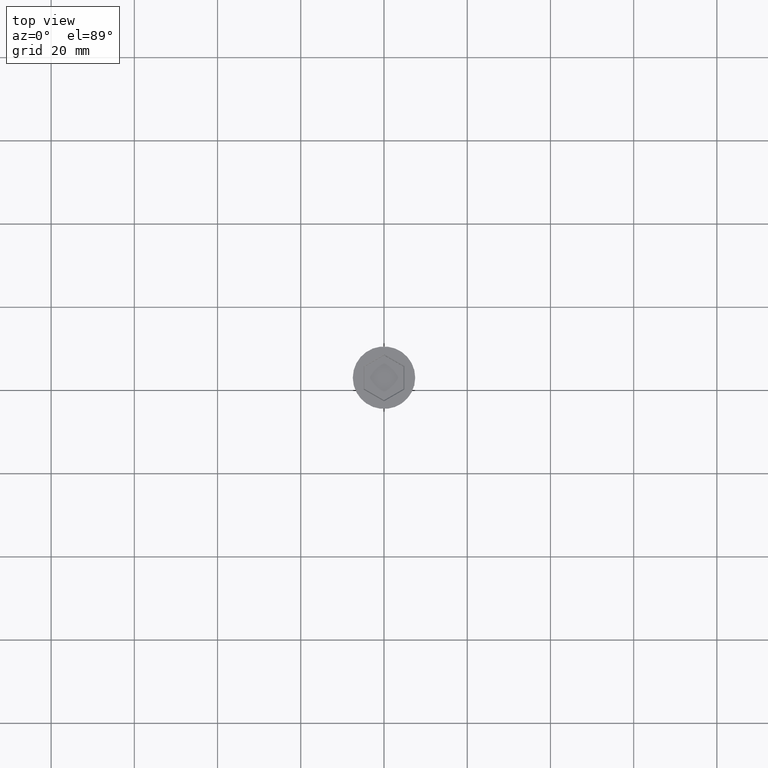
[diagram: clean part render]
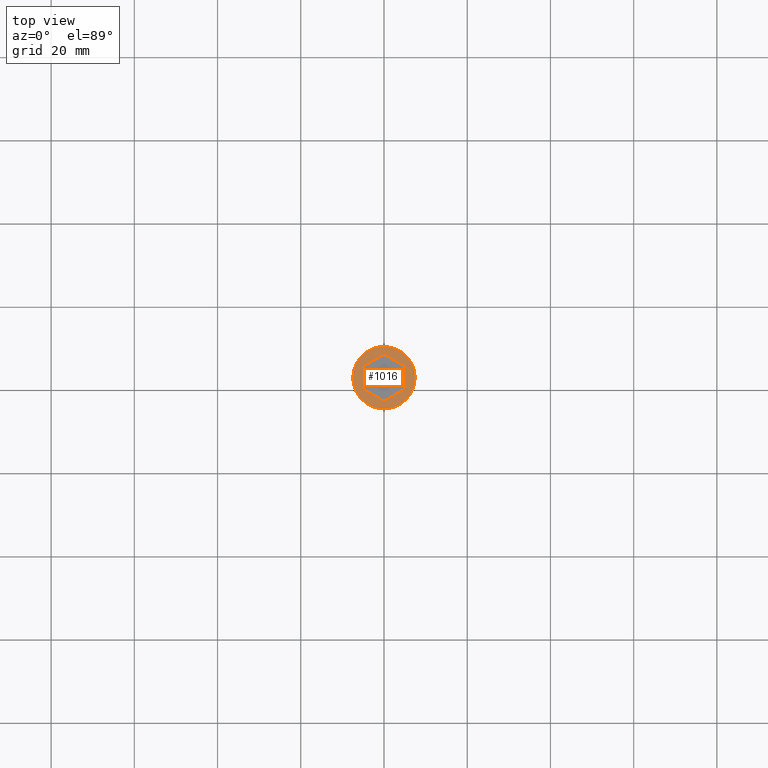
[diagram: same view with one face highlighted and labeled with its STEP entity id]
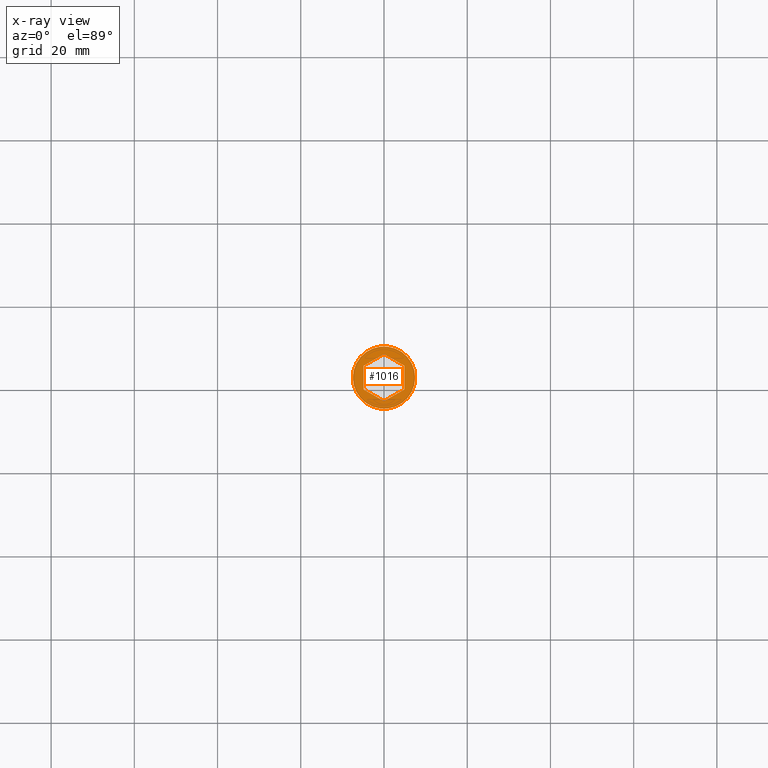
[diagram: x-ray of the same camera — body ghosted, the highlighted face saturated]
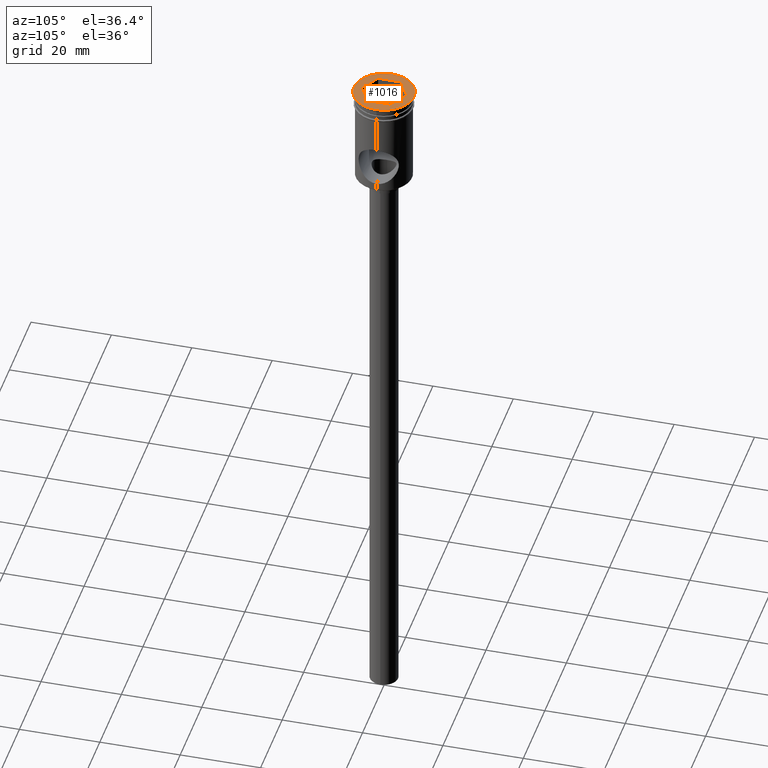
[diagram: same view with one face highlighted and labeled with its STEP entity id]
A machine part, top view. The second image highlights one B-rep face of the part: STEP entity #1016.
The next image is the same camera in x-ray: the body ghosted, the highlighted face saturated — about 0% of this face is hidden behind the body in this view.
A second angle (auxiliary view) of the same face is appended — the face is thin or edge-on in the first view.
In plain terms, the highlighted planar face has unit normal (0, -0, 1).
Its self-contained STEP definition (entity closure, byte-faithful):
#27 = VECTOR ( 'NONE', #640, 1000.000000000000000 ) ;
#35 = EDGE_LOOP ( 'NONE', ( #95, #617 ) ) ;
#39 = LINE ( 'NONE', #477, #700 ) ;
#45 = VECTOR ( 'NONE', #340, 1000.000000000000000 ) ;
#95 = ORIENTED_EDGE ( 'NONE', *, *, #625, .T. ) ;
#100 = DIRECTION ( 'NONE',  ( -1.598207019933148115E-16, -1.000000000000000000, 0.000000000000000000 ) ) ;
#104 = LINE ( 'NONE', #320, #45 ) ;
#154 = CARTESIAN_POINT ( 'NONE',  ( 0.09999999999999630018, -5.600297611139365195, 0.000000000000000000 ) ) ;
#159 = CARTESIAN_POINT ( 'NONE',  ( -4.899999999999994138, 2.829016319029163729, 0.000000000000000000 ) ) ;
#163 = PLANE ( 'NONE',  #1150 ) ;
#192 = EDGE_CURVE ( 'NONE', #485, #636, #104, .T. ) ;
#209 = CARTESIAN_POINT ( 'NONE',  ( 4.899999999999994138, -2.829016319029163729, 0.000000000000000000 ) ) ;
#248 = AXIS2_PLACEMENT_3D ( 'NONE', #575, #1458, #689 ) ;
#320 = CARTESIAN_POINT ( 'NONE',  ( -0.09999999999999770184, 5.600297611139364307, 0.000000000000000000 ) ) ;
#340 = DIRECTION ( 'NONE',  ( 0.8660254037844387076, 0.4999999999999998890, 0.000000000000000000 ) ) ;
#349 = ORIENTED_EDGE ( 'NONE', *, *, #392, .T. ) ;
#362 = CARTESIAN_POINT ( 'NONE',  ( -4.899999999999994138, 2.713546265191240536, 0.000000000000000000 ) ) ;
#392 = EDGE_CURVE ( 'NONE', #636, #457, #39, .T. ) ;
#418 = CARTESIAN_POINT ( 'NONE',  ( -7.915723921244255173E-16, 5.658032638058325681, 0.000000000000000000 ) ) ;
#457 = VERTEX_POINT ( 'NONE', #605 ) ;
#477 = CARTESIAN_POINT ( 'NONE',  ( 4.799999999999996270, 2.886751345948122882, 0.000000000000000000 ) ) ;
#485 = VERTEX_POINT ( 'NONE', #159 ) ;
#515 = CARTESIAN_POINT ( 'NONE',  ( 0.000000000000000000, 0.000000000000000000, 0.000000000000000000 ) ) ;
#545 = AXIS2_PLACEMENT_3D ( 'NONE', #974, #1086, #979 ) ;
#575 = CARTESIAN_POINT ( 'NONE',  ( 0.000000000000000000, 0.000000000000000000, 0.000000000000000000 ) ) ;
#590 = ORIENTED_EDGE ( 'NONE', *, *, #978, .T. ) ;
#605 = CARTESIAN_POINT ( 'NONE',  ( 4.899999999999995026, 2.829016319029161508, 0.000000000000000000 ) ) ;
#608 = ORIENTED_EDGE ( 'NONE', *, *, #1134, .T. ) ;
#617 = ORIENTED_EDGE ( 'NONE', *, *, #1047, .T. ) ;
#625 = EDGE_CURVE ( 'NONE', #1294, #1132, #725, .T. ) ;
#636 = VERTEX_POINT ( 'NONE', #418 ) ;
#640 = DIRECTION ( 'NONE',  ( -0.8660254037844387076, -0.4999999999999998890, 0.000000000000000000 ) ) ;
#683 = EDGE_CURVE ( 'NONE', #1093, #485, #951, .T. ) ;
#689 = DIRECTION ( 'NONE',  ( 1.000000000000000000, 0.000000000000000000, 0.000000000000000000 ) ) ;
#700 = VECTOR ( 'NONE', #1074, 1000.000000000000114 ) ;
#702 = VECTOR ( 'NONE', #1383, 999.9999999999998863 ) ;
#716 = ORIENTED_EDGE ( 'NONE', *, *, #192, .T. ) ;
#725 = CIRCLE ( 'NONE', #248, 7.500000000000000000 ) ;
#735 = CARTESIAN_POINT ( 'NONE',  ( 7.500000000000000000, 0.000000000000000000, 0.000000000000000000 ) ) ;
#748 = DIRECTION ( 'NONE',  ( 0.000000000000000000, -0.000000000000000000, 1.000000000000000000 ) ) ;
#755 = VECTOR ( 'NONE', #100, 1000.000000000000000 ) ;
#819 = LINE ( 'NONE', #1474, #755 ) ;
#852 = FACE_OUTER_BOUND ( 'NONE', #35, .T. ) ;
#925 = CARTESIAN_POINT ( 'NONE',  ( -4.799999999999996270, -2.886751345948123770, 0.000000000000000000 ) ) ;
#946 = ORIENTED_EDGE ( 'NONE', *, *, #683, .T. ) ;
#951 = LINE ( 'NONE', #362, #982 ) ;
#968 = LINE ( 'NONE', #154, #27 ) ;
#974 = CARTESIAN_POINT ( 'NONE',  ( 0.000000000000000000, 0.000000000000000000, 0.000000000000000000 ) ) ;
#978 = EDGE_CURVE ( 'NONE', #1203, #1356, #968, .T. ) ;
#979 = DIRECTION ( 'NONE',  ( 1.000000000000000000, 0.000000000000000000, 0.000000000000000000 ) ) ;
#982 = VECTOR ( 'NONE', #1172, 1000.000000000000000 ) ;
#1000 = CARTESIAN_POINT ( 'NONE',  ( -3.203600579260160317E-16, -5.658032638058326569, 0.000000000000000000 ) ) ;
#1016 = ADVANCED_FACE ( 'NONE', ( #1451, #852 ), #163, .T. ) ;
#1040 = CARTESIAN_POINT ( 'NONE',  ( -7.500000000000000000, 9.184850993605147944E-16, 0.000000000000000000 ) ) ;
#1047 = EDGE_CURVE ( 'NONE', #1132, #1294, #1180, .T. ) ;
#1074 = DIRECTION ( 'NONE',  ( 0.8660254037844385966, -0.5000000000000001110, 0.000000000000000000 ) ) ;
#1086 = DIRECTION ( 'NONE',  ( -0.000000000000000000, -0.000000000000000000, 1.000000000000000000 ) ) ;
#1093 = VERTEX_POINT ( 'NONE', #1190 ) ;
#1105 = EDGE_CURVE ( 'NONE', #1356, #1093, #1199, .T. ) ;
#1108 = ORIENTED_EDGE ( 'NONE', *, *, #1105, .T. ) ;
#1132 = VERTEX_POINT ( 'NONE', #1040 ) ;
#1134 = EDGE_CURVE ( 'NONE', #457, #1203, #819, .T. ) ;
#1150 = AXIS2_PLACEMENT_3D ( 'NONE', #515, #748, #1445 ) ;
#1172 = DIRECTION ( 'NONE',  ( 0.000000000000000000, 1.000000000000000000, 0.000000000000000000 ) ) ;
#1180 = CIRCLE ( 'NONE', #545, 7.500000000000000000 ) ;
#1190 = CARTESIAN_POINT ( 'NONE',  ( -4.899999999999994138, -2.829016319029162840, 0.000000000000000000 ) ) ;
#1199 = LINE ( 'NONE', #925, #702 ) ;
#1203 = VERTEX_POINT ( 'NONE', #209 ) ;
#1294 = VERTEX_POINT ( 'NONE', #735 ) ;
#1356 = VERTEX_POINT ( 'NONE', #1000 ) ;
#1383 = DIRECTION ( 'NONE',  ( -0.8660254037844385966, 0.5000000000000002220, 0.000000000000000000 ) ) ;
#1432 = EDGE_LOOP ( 'NONE', ( #1108, #946, #716, #349, #608, #590 ) ) ;
#1445 = DIRECTION ( 'NONE',  ( 1.000000000000000000, 0.000000000000000000, 0.000000000000000000 ) ) ;
#1451 = FACE_BOUND ( 'NONE', #1432, .T. ) ;
#1458 = DIRECTION ( 'NONE',  ( -0.000000000000000000, -0.000000000000000000, 1.000000000000000000 ) ) ;
#1474 = CARTESIAN_POINT ( 'NONE',  ( 4.899999999999994138, -2.713546265191241869, 0.000000000000000000 ) ) ;